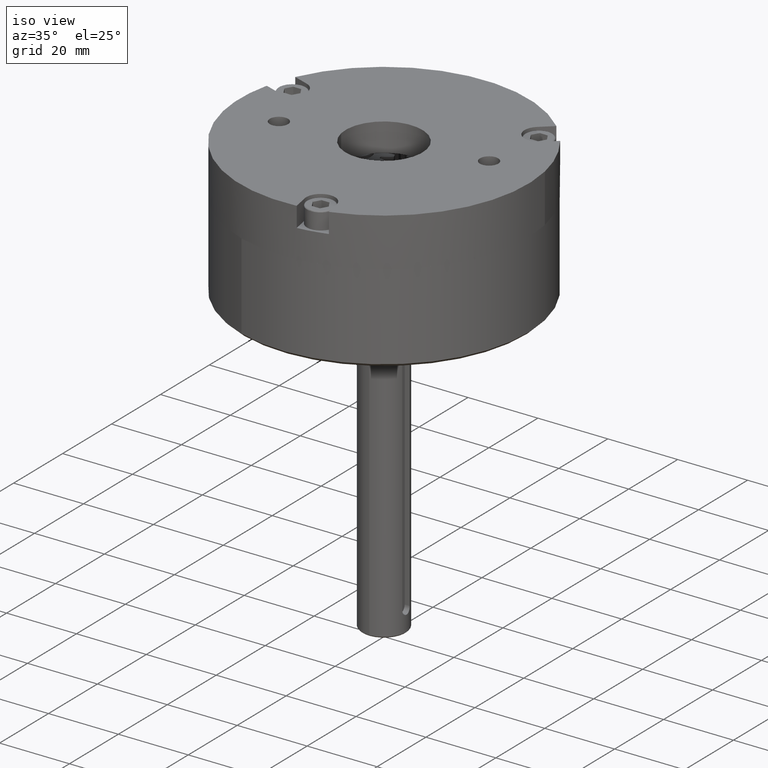
[diagram: clean part render]
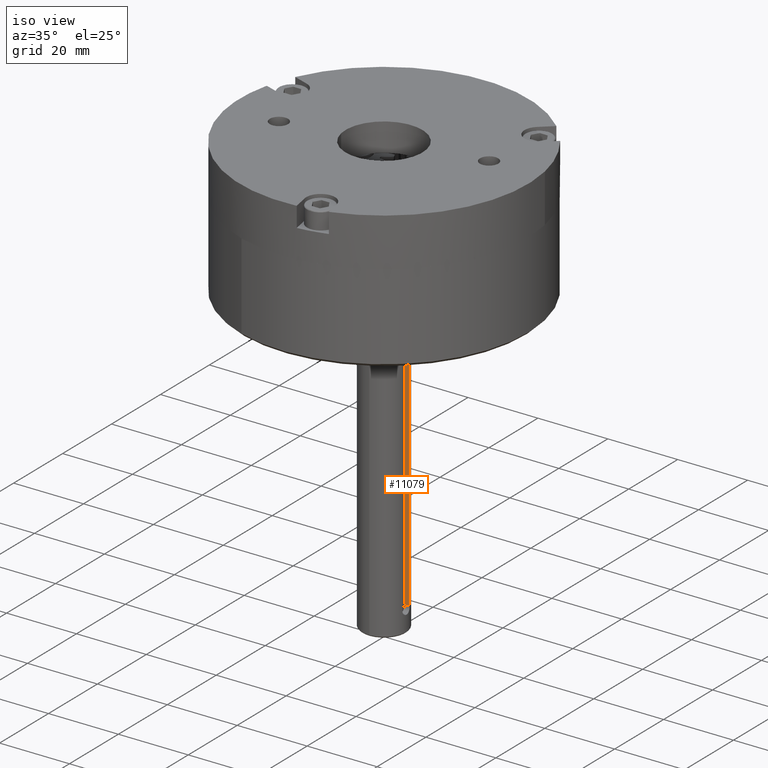
[diagram: same view with one face highlighted and labeled with its STEP entity id]
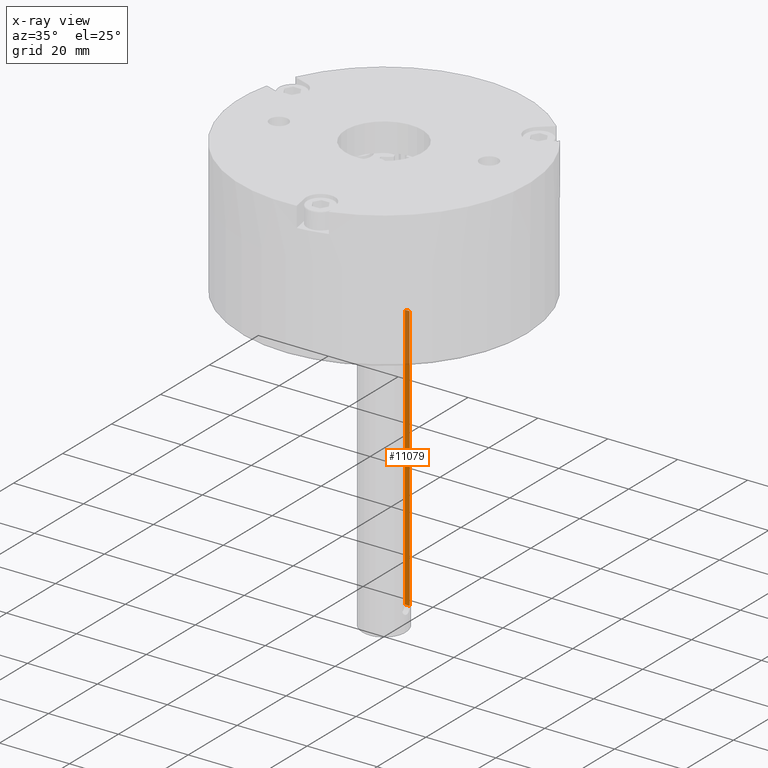
[diagram: x-ray of the same camera — body ghosted, the highlighted face saturated]
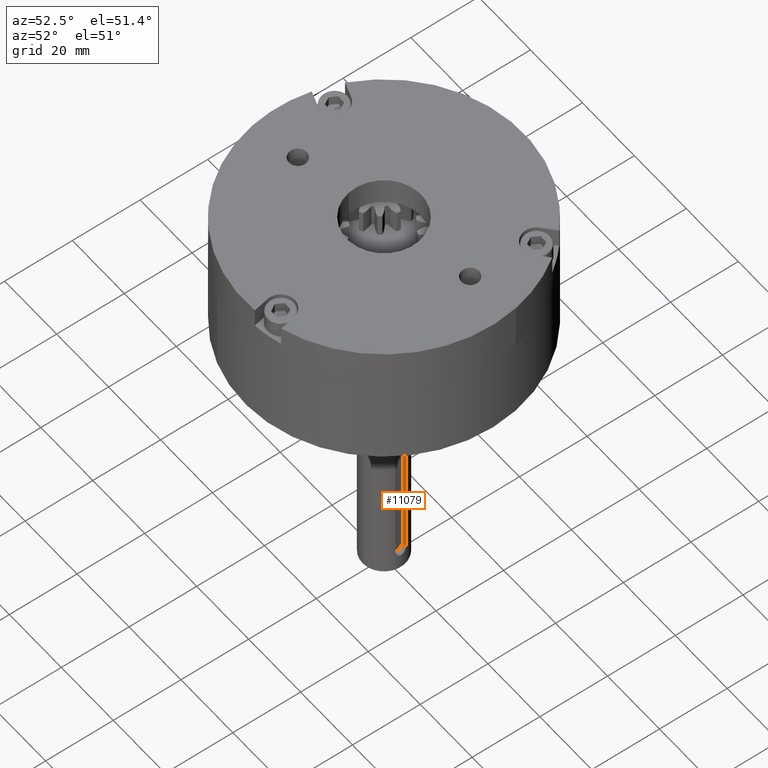
[diagram: same view with one face highlighted and labeled with its STEP entity id]
A machine part, iso view. The second image highlights one B-rep face of the part: STEP entity #11079.
The next image is the same camera in x-ray: the body ghosted, the highlighted face saturated — about 19% of this face is hidden behind the body in this view.
A second angle (auxiliary view) of the same face is appended — the face is thin or edge-on in the first view.
In plain terms, the highlighted planar face has unit normal (-0.0345, 0.9994, 0).
Its self-contained STEP definition (entity closure, byte-faithful):
#400 = CARTESIAN_POINT ( 'NONE',  ( 0.06249999999999948700, 0.1874500000000000100, 3.980000000000000000 ) ) ;
#401 = DIRECTION ( 'NONE',  ( -0.0000000000000000000, -1.000000000000000000, -0.0000000000000000000 ) ) ;
#402 = VECTOR ( 'NONE', #401, 39.37007874015748100 ) ;
#406 = LINE ( 'NONE', #408, #402 ) ;
#408 = CARTESIAN_POINT ( 'NONE',  ( 0.06249999999999948700, 0.9365393700787402200, 3.980000000000000000 ) ) ;
#422 = DIRECTION ( 'NONE',  ( -1.593577996304153100E-016, 0.0000000000000000000, -1.000000000000000000 ) ) ;
#423 = DIRECTION ( 'NONE',  ( 1.000000000000000000, 0.0000000000000000000, -1.593577996304153100E-016 ) ) ;
#424 = CARTESIAN_POINT ( 'NONE',  ( 0.06249999999999889000, 0.9365393700787402200, 0.9799999999999994300 ) ) ;
#425 = AXIS2_PLACEMENT_3D ( 'NONE', #424, #423, #422 ) ;
#429 = PLANE ( 'NONE',  #425 ) ;
#430 = DIRECTION ( 'NONE',  ( 1.593577996304153100E-016, 0.0000000000000000000, 1.000000000000000000 ) ) ;
#431 = VECTOR ( 'NONE', #430, 39.37007874015748100 ) ;
#432 = CARTESIAN_POINT ( 'NONE',  ( 0.06249999999999889000, 0.1874500000000000100, 0.9799999999999994300 ) ) ;
#434 = FACE_OUTER_BOUND ( 'NONE', #15787, .T. ) ;
#438 = LINE ( 'NONE', #432, #431 ) ;
#7910 = CARTESIAN_POINT ( 'NONE',  ( 0.06249999999999941000, 0.2420614591379637000, 3.980000000000000000 ) ) ;
#7911 = CARTESIAN_POINT ( 'NONE',  ( 0.06249999999999941000, 0.2420614591379637000, 0.9799999999999994300 ) ) ;
#7950 = DIRECTION ( 'NONE',  ( -0.0000000000000000000, -0.0000000000000000000, -1.000000000000000000 ) ) ;
#7951 = VECTOR ( 'NONE', #7950, 39.37007874015748100 ) ;
#7952 = CARTESIAN_POINT ( 'NONE',  ( 0.06249999999999941000, 0.2420614591379637000, 4.229999999999999500 ) ) ;
#7953 = LINE ( 'NONE', #7952, #7951 ) ;
#7958 = CARTESIAN_POINT ( 'NONE',  ( 0.06249999999999889000, 0.1874500000000000100, 0.9799999999999994300 ) ) ;
#8051 = DIRECTION ( 'NONE',  ( -0.0000000000000000000, -1.000000000000000000, -0.0000000000000000000 ) ) ;
#8055 = CARTESIAN_POINT ( 'NONE',  ( 0.06249999999999889000, 0.9365393700787402200, 0.9799999999999994300 ) ) ;
#8056 = LINE ( 'NONE', #8055, #8058 ) ;
#8058 = VECTOR ( 'NONE', #8051, 39.37007874015748100 ) ;
#11040 = ORIENTED_EDGE ( 'NONE', *, *, #15601, .T. ) ;
#11041 = ORIENTED_EDGE ( 'NONE', *, *, #11052, .F. ) ;
#11052 = EDGE_CURVE ( 'NONE', #15587, #11054, #406, .T. ) ;
#11054 = VERTEX_POINT ( 'NONE', #400 ) ;
#11066 = ORIENTED_EDGE ( 'NONE', *, *, #11077, .T. ) ;
#11077 = EDGE_CURVE ( 'NONE', #15603, #11054, #438, .T. ) ;
#11079 = ADVANCED_FACE ( 'NONE', ( #434 ), #429, .F. ) ;
#11082 = ORIENTED_EDGE ( 'NONE', *, *, #15634, .T. ) ;
#15586 = VERTEX_POINT ( 'NONE', #7911 ) ;
#15587 = VERTEX_POINT ( 'NONE', #7910 ) ;
#15601 = EDGE_CURVE ( 'NONE', #15587, #15586, #7953, .T. ) ;
#15603 = VERTEX_POINT ( 'NONE', #7958 ) ;
#15634 = EDGE_CURVE ( 'NONE', #15586, #15603, #8056, .T. ) ;
#15787 = EDGE_LOOP ( 'NONE', ( #11040, #11082, #11066, #11041 ) ) ;